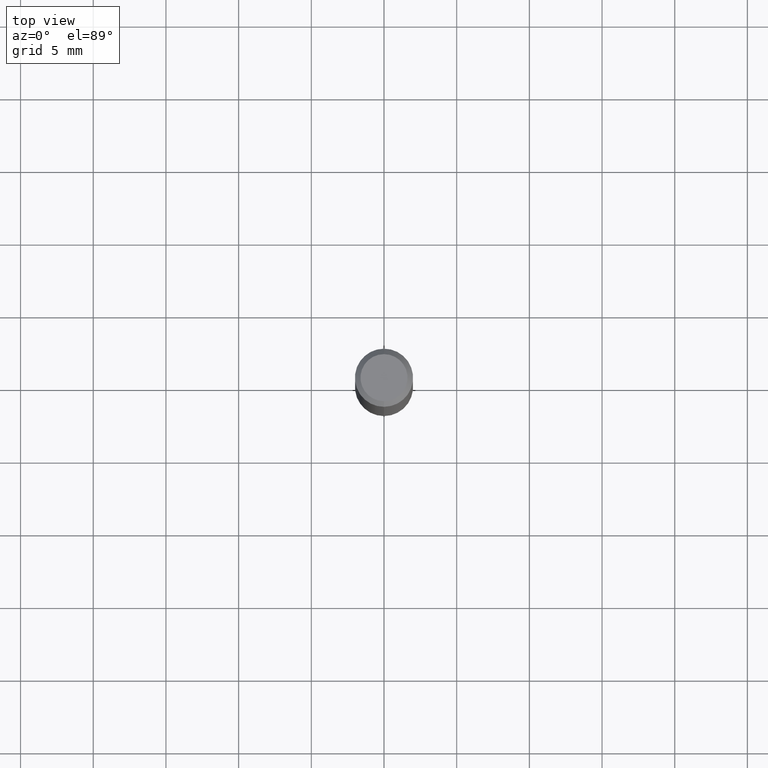
[diagram: clean part render]
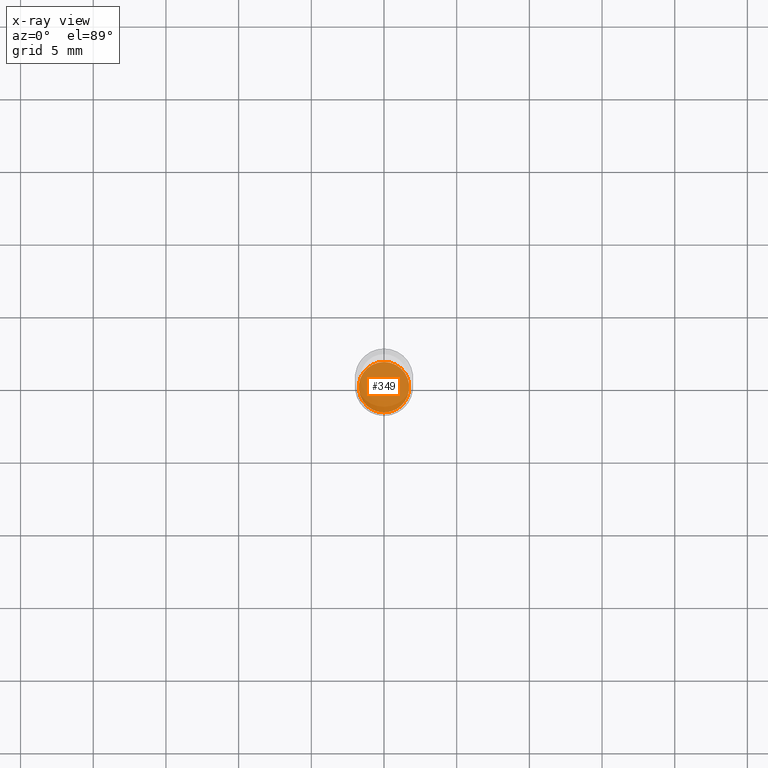
[diagram: x-ray — body ghosted, one internal face saturated and labeled with its STEP entity id]
A machine part, top view, then the same camera in x-ray: the body is ghosted and one INTERNAL B-rep face — a face not visible from any outside direction — is saturated and labeled: STEP entity #349.
In plain terms, the highlighted planar face has unit normal (-0, 0, 1).
Its self-contained STEP definition (entity closure, byte-faithful):
#7 = AXIS2_PLACEMENT_3D ( 'NONE', #75, #180, #108 ) ;
#23 = CARTESIAN_POINT ( 'NONE',  ( -4.776346471537044438E-16, -0.06840000000000528990, -1.496099999999999541 ) ) ;
#57 = DIRECTION ( 'NONE',  ( -6.982962677686266711E-15, -1.000000000000000000, 3.993929815298627073E-15 ) ) ;
#75 = CARTESIAN_POINT ( 'NONE',  ( 3.659039721915122742E-29, -5.223069869479955983E-15, -1.496099999999999985 ) ) ;
#81 = EDGE_CURVE ( 'NONE', #439, #126, #301, .T. ) ;
#108 = DIRECTION ( 'NONE',  ( -6.982962677686266711E-15, -1.000000000000000000, 3.993929815298627073E-15 ) ) ;
#123 = FACE_OUTER_BOUND ( 'NONE', #440, .T. ) ;
#126 = VERTEX_POINT ( 'NONE', #23 ) ;
#180 = DIRECTION ( 'NONE',  ( -2.445718683186366736E-29, 3.491123500755268031E-15, 1.000000000000000000 ) ) ;
#203 = ORIENTED_EDGE ( 'NONE', *, *, #81, .F. ) ;
#221 = CIRCLE ( 'NONE', #508, 0.06840000000000005798 ) ;
#240 = PLANE ( 'NONE',  #258 ) ;
#258 = AXIS2_PLACEMENT_3D ( 'NONE', #414, #369, #485 ) ;
#270 = CARTESIAN_POINT ( 'NONE',  ( 3.659039721915122742E-29, -5.223069869479955983E-15, -1.496099999999999985 ) ) ;
#286 = CARTESIAN_POINT ( 'NONE',  ( 4.877875880993454787E-16, 0.06839999999999483993, -1.496100000000000207 ) ) ;
#290 = EDGE_CURVE ( 'NONE', #126, #439, #221, .T. ) ;
#301 = CIRCLE ( 'NONE', #7, 0.06840000000000005798 ) ;
#349 = ADVANCED_FACE ( 'NONE', ( #123 ), #240, .F. ) ;
#369 = DIRECTION ( 'NONE',  ( -2.445718683186366455E-29, 3.491123500755268426E-15, 1.000000000000000000 ) ) ;
#414 = CARTESIAN_POINT ( 'NONE',  ( 3.659039721915122742E-29, -5.223069869479955983E-15, -1.496099999999999985 ) ) ;
#427 = DIRECTION ( 'NONE',  ( -2.445718683186366736E-29, 3.491123500755268031E-15, 1.000000000000000000 ) ) ;
#439 = VERTEX_POINT ( 'NONE', #286 ) ;
#440 = EDGE_LOOP ( 'NONE', ( #512, #203 ) ) ;
#485 = DIRECTION ( 'NONE',  ( -6.982962677686265922E-15, -1.000000000000000000, 3.491123500755268426E-15 ) ) ;
#508 = AXIS2_PLACEMENT_3D ( 'NONE', #270, #427, #57 ) ;
#512 = ORIENTED_EDGE ( 'NONE', *, *, #290, .F. ) ;